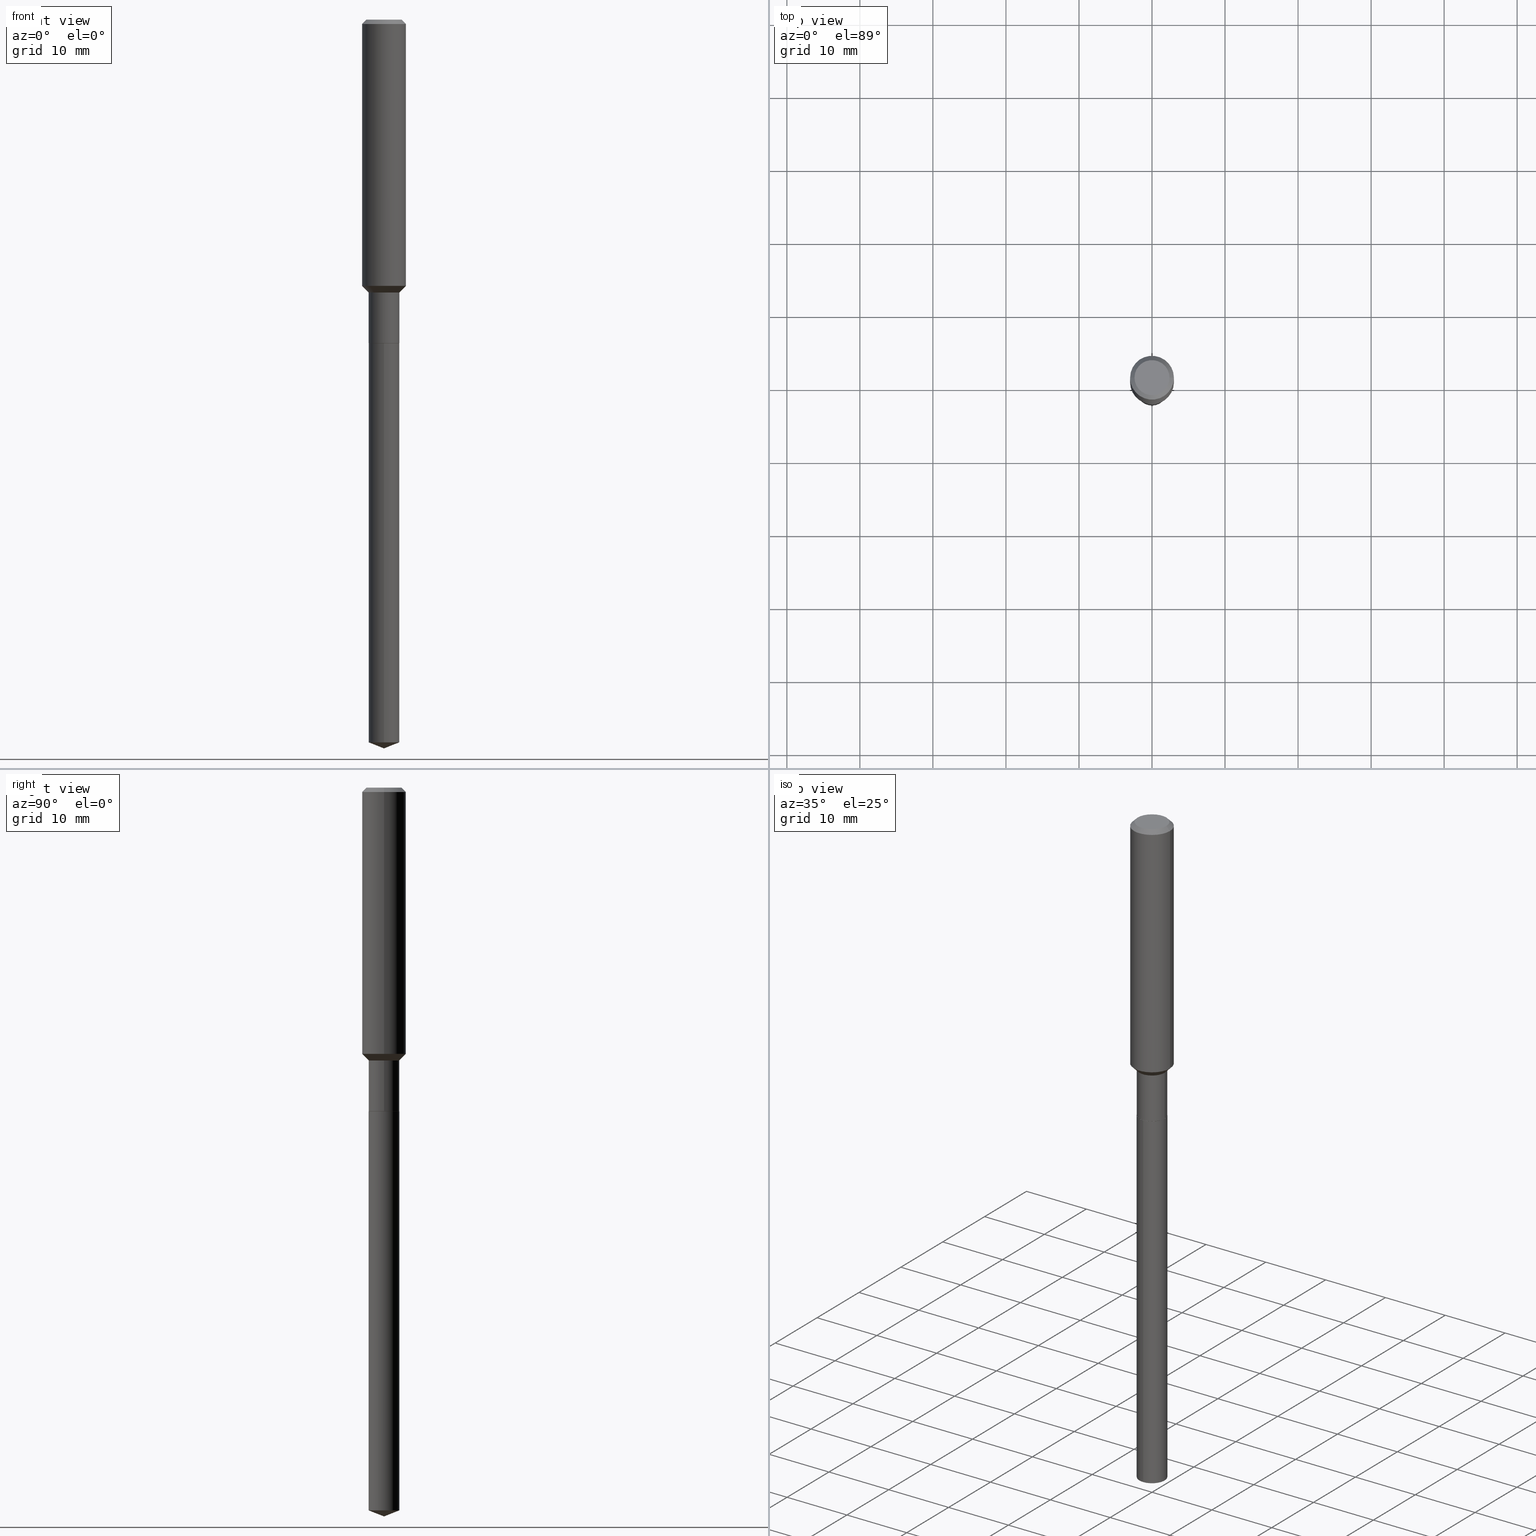
[diagram: canonical four-view strip — front | top / right | iso, engineering-drawing reading convention]
A machine part, canonical four-view strip (front | top / right | iso — engineering-drawing reading convention). The complete STEP part file that produces these views, byte-faithful:
ISO-10303-21;
HEADER;
FILE_DESCRIPTION (( 'STEP AP203' ),
    '1' );
FILE_NAME ('66721.STEP',
    '2024-04-25T04:30:56',
    ( '' ),
    ( '' ),
    'SwSTEP 2.0',
    'SolidWorks 2023',
    '' );
FILE_SCHEMA (( 'CONFIG_CONTROL_DESIGN' ));
ENDSEC;

DATA;
#1 = CIRCLE ( 'NONE', #403, 0.09447999999999998066 ) ;
#2 = LOCAL_TIME ( 0, 30, 56.00000000000000000, #224 ) ;
#3 = DIRECTION ( 'NONE',  ( -0.7071067811865483499, 7.493145998870357316E-15, 0.7071067811865466846 ) ) ;
#4 = CALENDAR_DATE ( 2024, 25, 4 ) ;
#5 = DIRECTION ( 'NONE',  ( -2.445430499061635460E-29, 3.491536196824304965E-15, 1.000000000000000000 ) ) ;
#6 = EDGE_CURVE ( 'NONE', #207, #221, #369, .T. ) ;
#7 = CARTESIAN_POINT ( 'NONE',  ( 4.264897597986878229E-29, -6.089143454942446628E-15, -1.743999999999999995 ) ) ;
#8 = DIRECTION ( 'NONE',  ( -2.445430499061635460E-29, 3.491536196824304965E-15, 1.000000000000000000 ) ) ;
#9 = CC_DESIGN_APPROVAL ( #430, ( #360 ) ) ;
#10 = CARTESIAN_POINT ( 'NONE',  ( 0.000000000000000000, 0.000000000000000000, 0.000000000000000000 ) ) ;
#11 = CARTESIAN_POINT ( 'NONE',  ( -0.08219999999999999529, -5.502428098973532713E-15, -1.743999999999999995 ) ) ;
#12 = CARTESIAN_POINT ( 'NONE',  ( 5.776197320209327532E-31, -8.246878922347559293E-17, -0.02362000000000014088 ) ) ;
#13 = ORIENTED_EDGE ( 'NONE', *, *, #106, .T. ) ;
#14 = CLOSED_SHELL ( 'NONE', ( #137, #485, #198, #43, #219 ) ) ;
#15 = AXIS2_PLACEMENT_3D ( 'NONE', #335, #481, #484 ) ;
#16 = DIRECTION ( 'NONE',  ( -2.445468806185136597E-29, 3.491481338843145583E-15, 1.000000000000000000 ) ) ;
#17 = ORIENTED_EDGE ( 'NONE', *, *, #307, .F. ) ;
#18 = MANIFOLD_SOLID_BREP ( 'Body-Move/Copy2[2]', #116 ) ;
#19 = CARTESIAN_POINT ( 'NONE',  ( -8.666862806320264475E-28, 1.237439049480793293E-13, 35.44107874015747939 ) ) ;
#20 = ADVANCED_FACE ( 'NONE', ( #142 ), #375, .T. ) ;
#21 = ORIENTED_EDGE ( 'NONE', *, *, #300, .T. ) ;
#22 = ORIENTED_EDGE ( 'NONE', *, *, #6, .T. ) ;
#23 = AXIS2_PLACEMENT_3D ( 'NONE', #346, #36, #349 ) ;
#24 = AXIS2_PLACEMENT_3D ( 'NONE', #393, #160, #427 ) ;
#25 = LINE ( 'NONE', #365, #81 ) ;
#26 = CARTESIAN_POINT ( 'NONE',  ( 0.1180999999999999966, -8.926936027602933910E-16, -0.02362000000000014088 ) ) ;
#27 = LINE ( 'NONE', #288, #95 ) ;
#28 = ORIENTED_EDGE ( 'NONE', *, *, #114, .F. ) ;
#29 = CC_DESIGN_DATE_AND_TIME_ASSIGNMENT ( #377, #75, ( #360 ) ) ;
#30 = FACE_OUTER_BOUND ( 'NONE', #480, .T. ) ;
#31 = CIRCLE ( 'NONE', #74, 0.08269999999999996798 ) ;
#32 = DATE_AND_TIME ( #39, #117 ) ;
#33 = CONICAL_SURFACE ( 'NONE', #317, 0.08269999999999996798, 0.7853981633974495002 ) ;
#34 = ORIENTED_EDGE ( 'NONE', *, *, #52, .F. ) ;
#35 = PERSON_AND_ORGANIZATION ( #454, #296 ) ;
#36 = DIRECTION ( 'NONE',  ( -2.445430499061635460E-29, 3.491536196824304965E-15, 1.000000000000000000 ) ) ;
#37 = PERSON_AND_ORGANIZATION ( #454, #296 ) ;
#38 = CYLINDRICAL_SURFACE ( 'NONE', #381, 0.08269999999999998186 ) ;
#39 = CALENDAR_DATE ( 2024, 25, 4 ) ;
#40 = AXIS2_PLACEMENT_3D ( 'NONE', #353, #16, #462 ) ;
#41 = CONICAL_SURFACE ( 'NONE', #414, 99.94676754584023115, 1.195550537616120401 ) ;
#42 = CARTESIAN_POINT ( 'NONE',  ( 5.876188424736979798E-16, 0.08269999999998636775, -3.896423603666645530 ) ) ;
#43 = ADVANCED_FACE ( 'NONE', ( #409 ), #97, .T. ) ;
#44 = PERSON_AND_ORGANIZATION ( #454, #296 ) ;
#45 = FACE_OUTER_BOUND ( 'NONE', #334, .T. ) ;
#46 = CARTESIAN_POINT ( 'NONE',  ( 4.264897597986878229E-29, -6.089143454942446628E-15, -1.743999999999999995 ) ) ;
#47 = CARTESIAN_POINT ( 'NONE',  ( -0.1180999999999999966, -1.708617876834551977E-15, -0.02362000000000014088 ) ) ;
#48 = CIRCLE ( 'NONE', #23, 0.08269999999999999574 ) ;
#49 = CC_DESIGN_APPROVAL ( #347, ( #174 ) ) ;
#50 = VERTEX_POINT ( 'NONE', #295 ) ;
#51 = CARTESIAN_POINT ( 'NONE',  ( 4.264897597986878229E-29, -6.089143454942446628E-15, -1.743999999999999995 ) ) ;
#52 = EDGE_CURVE ( 'NONE', #103, #366, #191, .T. ) ;
#53 = ORIENTED_EDGE ( 'NONE', *, *, #459, .F. ) ;
#54 = DIRECTION ( 'NONE',  ( -2.445430499061635460E-29, 3.491536196824304965E-15, 1.000000000000000000 ) ) ;
#55 = EDGE_LOOP ( 'NONE', ( #434, #100, #395 ) ) ;
#56 = ADVANCED_FACE ( 'NONE', ( #30 ), #396, .T. ) ;
#57 = DIRECTION ( 'NONE',  ( -2.445468806185136597E-29, 3.491481338843145583E-15, 1.000000000000000000 ) ) ;
#58 = ORIENTED_EDGE ( 'NONE', *, *, #348, .F. ) ;
#59 = EDGE_CURVE ( 'NONE', #299, #133, #109, .T. ) ;
#60 = DIRECTION ( 'NONE',  ( -2.445468806185136877E-29, 3.491481338843145188E-15, 1.000000000000000000 ) ) ;
#61 = ORIENTED_EDGE ( 'NONE', *, *, #364, .F. ) ;
#62 =( LENGTH_UNIT ( ) NAMED_UNIT ( * ) SI_UNIT ( $, .METRE. ) );
#63 = ORIENTED_EDGE ( 'NONE', *, *, #205, .T. ) ;
#64 = DIRECTION ( 'NONE',  ( -2.445430499061635460E-29, 3.491536196824304965E-15, 1.000000000000000000 ) ) ;
#65 = ORIENTED_EDGE ( 'NONE', *, *, #388, .F. ) ;
#66 = VECTOR ( 'NONE', #385, 39.37007874015748143 ) ;
#67 = DIRECTION ( 'NONE',  ( -2.445468806185136597E-29, 3.491481338843145583E-15, 1.000000000000000000 ) ) ;
#68 = DIRECTION ( 'NONE',  ( 2.445468806185136597E-29, -3.491481338843145583E-15, -1.000000000000000000 ) ) ;
#69 = DIRECTION ( 'NONE',  ( -2.445468806185136877E-29, 3.491481338843145188E-15, 1.000000000000000000 ) ) ;
#70 = ORIENTED_EDGE ( 'NONE', *, *, #348, .T. ) ;
#71 = APPROVAL_ROLE ( '' ) ;
#72 = ORIENTED_EDGE ( 'NONE', *, *, #145, .F. ) ;
#73 = EDGE_CURVE ( 'NONE', #287, #133, #225, .T. ) ;
#74 = AXIS2_PLACEMENT_3D ( 'NONE', #278, #387, #425 ) ;
#75 = DATE_TIME_ROLE ( 'classification_date' ) ;
#76 = APPROVAL_PERSON_ORGANIZATION ( #35, #430, #71 ) ;
#77 = DIRECTION ( 'NONE',  ( -2.445468806185136597E-29, 3.491481338843145583E-15, 1.000000000000000000 ) ) ;
#78 = PERSON_AND_ORGANIZATION_ROLE ( 'creator' ) ;
#79 = CARTESIAN_POINT ( 'NONE',  ( -0.08269999999999996798, -4.549048503232433592E-15, -1.471199999999999841 ) ) ;
#80 = CARTESIAN_POINT ( 'NONE',  ( -0.08269999999999998186, 5.876188424736027248E-16, -4.067959319640806203E-30 ) ) ;
#81 = VECTOR ( 'NONE', #64, 39.37007874015748143 ) ;
#82 = CARTESIAN_POINT ( 'NONE',  ( 9.528499925293445229E-29, -1.360440837804354766E-14, -3.896423603666644642 ) ) ;
#83 = PLANE ( 'NONE',  #344 ) ;
#84 = CARTESIAN_POINT ( 'NONE',  ( 5.876188424736982756E-16, 0.08269999999999390339, -1.744000000000000217 ) ) ;
#85 = EDGE_LOOP ( 'NONE', ( #21, #444, #122, #326 ) ) ;
#86 = EDGE_CURVE ( 'NONE', #50, #207, #94, .T. ) ;
#87 = DIRECTION ( 'NONE',  ( 2.445468806185136597E-29, -3.491481338843145583E-15, -1.000000000000000000 ) ) ;
#88 = AXIS2_PLACEMENT_3D ( 'NONE', #406, #217, #372 ) ;
#89 = EDGE_LOOP ( 'NONE', ( #478, #196, #199, #34 ) ) ;
#90 = CARTESIAN_POINT ( 'NONE',  ( -0.08269999999999996798, -5.024413687515927552E-15, -1.471199999999999841 ) ) ;
#91 = DIRECTION ( 'NONE',  ( -2.445468806185136597E-29, 3.491481338843145583E-15, 1.000000000000000000 ) ) ;
#92 = ORIENTED_EDGE ( 'NONE', *, *, #273, .T. ) ;
#93 = CARTESIAN_POINT ( 'NONE',  ( 0.08269999999999999574, -6.664888727717679804E-15, -1.743500000000000050 ) ) ;
#94 = CIRCLE ( 'NONE', #179, 0.09447999999999998066 ) ;
#95 = VECTOR ( 'NONE', #210, 39.37007874015748854 ) ;
#96 = DIRECTION ( 'NONE',  ( -6.982962677686265922E-15, -1.000000000000000000, 3.498627837349995151E-15 ) ) ;
#97 = CYLINDRICAL_SURFACE ( 'NONE', #338, 0.08269999999999999574 ) ;
#98 = DIRECTION ( 'NONE',  ( 2.438088387897960049E-29, -3.491481338843145188E-15, -1.000000000000000000 ) ) ;
#99 = ORIENTED_EDGE ( 'NONE', *, *, #459, .T. ) ;
#100 = ORIENTED_EDGE ( 'NONE', *, *, #73, .T. ) ;
#101 = AXIS2_PLACEMENT_3D ( 'NONE', #193, #119, #272 ) ;
#102 = CIRCLE ( 'NONE', #184, 0.08269999999999999574 ) ;
#103 = VERTEX_POINT ( 'NONE', #413 ) ;
#104 = MECHANICAL_CONTEXT ( 'NONE', #129, 'mechanical' ) ;
#105 = ORIENTED_EDGE ( 'NONE', *, *, #86, .T. ) ;
#106 = EDGE_CURVE ( 'NONE', #207, #50, #1, .T. ) ;
#107 = PERSON_AND_ORGANIZATION_ROLE ( 'classification_officer' ) ;
#108 = CARTESIAN_POINT ( 'NONE',  ( -0.1181000000000000799, 8.391509709326788873E-16, -5.809262341591047988E-30 ) ) ;
#109 = CIRCLE ( 'NONE', #222, 0.08269999999999999574 ) ;
#110 = CC_DESIGN_SECURITY_CLASSIFICATION ( #360, ( #237 ) ) ;
#111 = APPROVAL_DATE_TIME ( #410, #347 ) ;
#112 = CARTESIAN_POINT ( 'NONE',  ( 3.511204111920619005E-29, -5.013068906310987652E-15, -1.435799999999999743 ) ) ;
#113 = CARTESIAN_POINT ( 'NONE',  ( -5.774910134446114897E-16, -0.08270000000000608809, -1.743999999999999773 ) ) ;
#114 = EDGE_CURVE ( 'NONE', #247, #320, #260, .T. ) ;
#115 = LINE ( 'NONE', #156, #66 ) ;
#116 = CLOSED_SHELL ( 'NONE', ( #208, #20, #283, #312, #304, #215, #56, #294, #328, #401, #476, #386 ) ) ;
#117 = LOCAL_TIME ( 0, 30, 56.00000000000000000, #148 ) ;
#118 = DIRECTION ( 'NONE',  ( 1.000000000000000000, -6.982962677686267499E-15, 4.876176775795936353E-29 ) ) ;
#119 = DIRECTION ( 'NONE',  ( -2.445468806185136597E-29, 3.491481338843145583E-15, 1.000000000000000000 ) ) ;
#120 = ORIENTED_EDGE ( 'NONE', *, *, #457, .T. ) ;
#121 = FACE_OUTER_BOUND ( 'NONE', #282, .T. ) ;
#122 = ORIENTED_EDGE ( 'NONE', *, *, #218, .F. ) ;
#123 = CARTESIAN_POINT ( 'NONE',  ( 0.08269999999999996798, -5.714158359150689518E-15, -1.471199999999999841 ) ) ;
#124 = CIRCLE ( 'NONE', #411, 0.08269999999999999574 ) ;
#125 = CC_DESIGN_APPROVAL ( #159, ( #237 ) ) ;
#126 = EDGE_LOOP ( 'NONE', ( #399, #472, #99, #58 ) ) ;
#127 = CARTESIAN_POINT ( 'NONE',  ( 0.000000000000000000, 0.000000000000000000, 0.000000000000000000 ) ) ;
#128 = EDGE_CURVE ( 'NONE', #366, #103, #124, .T. ) ;
#129 = APPLICATION_CONTEXT ( 'configuration controlled 3d designs of mechanical parts and assemblies' ) ;
#130 = LINE ( 'NONE', #281, #448 ) ;
#131 = ORIENTED_EDGE ( 'NONE', *, *, #86, .F. ) ;
#132 = FACE_OUTER_BOUND ( 'NONE', #251, .T. ) ;
#133 = VERTEX_POINT ( 'NONE', #42 ) ;
#134 = CIRCLE ( 'NONE', #467, 0.08269999999999999574 ) ;
#135 = PLANE ( 'NONE',  #230 ) ;
#136 = EDGE_LOOP ( 'NONE', ( #239, #70 ) ) ;
#137 = ADVANCED_FACE ( 'NONE', ( #45 ), #302, .T. ) ;
#138 = DIRECTION ( 'NONE',  ( -0.7071067811866199593, 7.493145998870616062E-15, 0.7071067811864750752 ) ) ;
#139 = DIRECTION ( 'NONE',  ( 0.7071067811865459074, -7.319954787623249734E-15, -0.7071067811865491270 ) ) ;
#140 = DIRECTION ( 'NONE',  ( 1.000000000000000000, -6.982962677686266711E-15, 0.000000000000000000 ) ) ;
#141 = EDGE_CURVE ( 'NONE', #167, #243, #446, .T. ) ;
#142 = FACE_OUTER_BOUND ( 'NONE', #180, .T. ) ;
#143 = CIRCLE ( 'NONE', #101, 0.1180999999999999966 ) ;
#144 = APPLICATION_PROTOCOL_DEFINITION ( 'international standard', 'config_control_design', 1994, #129 ) ;
#145 = EDGE_CURVE ( 'NONE', #133, #299, #48, .T. ) ;
#146 = VERTEX_POINT ( 'NONE', #113 ) ;
#147 = CC_DESIGN_PERSON_AND_ORGANIZATION_ASSIGNMENT ( #301, #262, ( #237 ) ) ;
#148 = COORDINATED_UNIVERSAL_TIME_OFFSET ( 5, 0, .BEHIND. ) ;
#149 = DIRECTION ( 'NONE',  ( 1.000000000000000000, -6.982962677686273021E-15, 0.000000000000000000 ) ) ;
#150 = DIRECTION ( 'NONE',  ( -2.445468806185136877E-29, 3.491481338843145188E-15, 1.000000000000000000 ) ) ;
#151 = VECTOR ( 'NONE', #150, 39.37007874015748143 ) ;
#152 = DATE_AND_TIME ( #4, #442 ) ;
#153 = CARTESIAN_POINT ( 'NONE',  ( 4.264897597986878229E-29, -6.089143454942446628E-15, -1.743999999999999995 ) ) ;
#154 = DIRECTION ( 'NONE',  ( -2.445468806185136597E-29, 3.491481338843145583E-15, 1.000000000000000000 ) ) ;
#155 = PERSON_AND_ORGANIZATION ( #454, #296 ) ;
#156 = CARTESIAN_POINT ( 'NONE',  ( 5.876188424736454219E-16, 0.08269999999999390339, -1.744000000000000217 ) ) ;
#157 = VECTOR ( 'NONE', #417, 39.37007874015748143 ) ;
#158 = DIRECTION ( 'NONE',  ( -2.445468806185136597E-29, 3.491481338843145583E-15, 1.000000000000000000 ) ) ;
#159 = APPROVAL ( #408, 'UNSPECIFIED' ) ;
#160 = DIRECTION ( 'NONE',  ( -2.445468806185136597E-29, 3.491481338843145583E-15, 1.000000000000000000 ) ) ;
#161 = CARTESIAN_POINT ( 'NONE',  ( 9.608096430813166932E-29, -1.371824571732269522E-14, -3.929000000000000270 ) ) ;
#162 = ORIENTED_EDGE ( 'NONE', *, *, #428, .T. ) ;
#163 = CARTESIAN_POINT ( 'NONE',  ( 0.1180999999999999966, -9.071566814582237199E-16, -0.02362000000000014088 ) ) ;
#164 = AXIS2_PLACEMENT_3D ( 'NONE', #404, #173, #140 ) ;
#165 = ORIENTED_EDGE ( 'NONE', *, *, #373, .T. ) ;
#166 = CARTESIAN_POINT ( 'NONE',  ( 3.597773707659572310E-29, -5.136667345706035627E-15, -1.471199999999999841 ) ) ;
#167 = VERTEX_POINT ( 'NONE', #227 ) ;
#168 = FACE_OUTER_BOUND ( 'NONE', #89, .T. ) ;
#169 = ORIENTED_EDGE ( 'NONE', *, *, #407, .F. ) ;
#170 = DIRECTION ( 'NONE',  ( -2.445430499061635460E-29, 3.491536196824304965E-15, 1.000000000000000000 ) ) ;
#171 = ORIENTED_EDGE ( 'NONE', *, *, #451, .T. ) ;
#172 = CONICAL_SURFACE ( 'NONE', #164, 0.08219999999999999529, 0.7853981633975507526 ) ;
#173 = DIRECTION ( 'NONE',  ( -2.445468806185136597E-29, 3.491481338843145583E-15, 1.000000000000000000 ) ) ;
#174 = PRODUCT_DEFINITION ( 'UNKNOWN', '', #237, #240 ) ;
#175 = ORIENTED_EDGE ( 'NONE', *, *, #73, .F. ) ;
#176 = EDGE_LOOP ( 'NONE', ( #175, #162, #72 ) ) ;
#177 = MANIFOLD_SOLID_BREP ( 'Body-Move/Copy2[1]', #14 ) ;
#178 = CARTESIAN_POINT ( 'NONE',  ( 3.597773707659572310E-29, -5.136667345706035627E-15, -1.471199999999999841 ) ) ;
#179 = AXIS2_PLACEMENT_3D ( 'NONE', #380, #419, #232 ) ;
#180 = EDGE_LOOP ( 'NONE', ( #402, #22, #92, #61 ) ) ;
#181 = COORDINATED_UNIVERSAL_TIME_OFFSET ( 5, 0, .BEHIND. ) ;
#182 = CARTESIAN_POINT ( 'NONE',  ( -8.666862806320264475E-28, 1.237439049480793293E-13, 35.44107874015747939 ) ) ;
#183 = CARTESIAN_POINT ( 'NONE',  ( 4.263674863583785988E-29, -6.087397714273025125E-15, -1.743500000000000050 ) ) ;
#184 = AXIS2_PLACEMENT_3D ( 'NONE', #397, #54, #463 ) ;
#185 = PERSON_AND_ORGANIZATION ( #454, #296 ) ;
#186 = CARTESIAN_POINT ( 'NONE',  ( 4.264897597986878229E-29, -6.089143454942446628E-15, -1.743999999999999995 ) ) ;
#187 = DIRECTION ( 'NONE',  ( -6.982962677686265922E-15, -1.000000000000000000, 3.303322846026920670E-15 ) ) ;
#188 = EDGE_CURVE ( 'NONE', #249, #167, #313, .T. ) ;
#189 = DIRECTION ( 'NONE',  ( -2.445468806185136597E-29, 3.491481338843145583E-15, 1.000000000000000000 ) ) ;
#190 = CONICAL_SURFACE ( 'NONE', #276, 99.94676754584023115, 1.195550537616120401 ) ;
#191 = CIRCLE ( 'NONE', #88, 0.08269999999999999574 ) ;
#192 = APPROVAL_PERSON_ORGANIZATION ( #185, #347, #383 ) ;
#193 = CARTESIAN_POINT ( 'NONE',  ( 5.776197320209327532E-31, -8.246878922347559293E-17, -0.02362000000000014088 ) ) ;
#194 = ORIENTED_EDGE ( 'NONE', *, *, #407, .T. ) ;
#195 = LINE ( 'NONE', #123, #323 ) ;
#196 = ORIENTED_EDGE ( 'NONE', *, *, #114, .T. ) ;
#197 = DIRECTION ( 'NONE',  ( 6.982962677686265922E-15, 1.000000000000000000, -3.491536196824304965E-15 ) ) ;
#198 = ADVANCED_FACE ( 'NONE', ( #310 ), #190, .T. ) ;
#199 = ORIENTED_EDGE ( 'NONE', *, *, #303, .T. ) ;
#200 = EDGE_CURVE ( 'NONE', #103, #249, #488, .T. ) ;
#201 = CC_DESIGN_PERSON_AND_ORGANIZATION_ASSIGNMENT ( #37, #107, ( #360 ) ) ;
#202 = DIRECTION ( 'NONE',  ( 1.000000000000000000, -6.982962677686266711E-15, 4.876176775795936353E-29 ) ) ;
#203 = VECTOR ( 'NONE', #138, 39.37007874015748143 ) ;
#204 = ORIENTED_EDGE ( 'NONE', *, *, #373, .F. ) ;
#205 = EDGE_CURVE ( 'NONE', #133, #292, #115, .T. ) ;
#206 = CARTESIAN_POINT ( 'NONE',  ( 0.1181000000000001632, -5.837756798545737492E-15, -1.435799999999999743 ) ) ;
#207 = VERTEX_POINT ( 'NONE', #379 ) ;
#208 = ADVANCED_FACE ( 'NONE', ( #228 ), #475, .T. ) ;
#209 = EDGE_LOOP ( 'NONE', ( #332, #436, #363, #376 ) ) ;
#210 = DIRECTION ( 'NONE',  ( -6.497071151882122203E-15, -0.9304175679820249067, 0.3665012267242962474 ) ) ;
#211 = ORIENTED_EDGE ( 'NONE', *, *, #59, .T. ) ;
#212 = CIRCLE ( 'NONE', #420, 0.08219999999999999529 ) ;
#213 = FACE_OUTER_BOUND ( 'NONE', #55, .T. ) ;
#214 = DIRECTION ( 'NONE',  ( -1.000000000000000000, 6.982962677686266711E-15, 0.000000000000000000 ) ) ;
#215 = ADVANCED_FACE ( 'NONE', ( #306 ), #38, .T. ) ;
#216 = PLANE ( 'NONE',  #382 ) ;
#217 = DIRECTION ( 'NONE',  ( -2.445468806185136597E-29, 3.491481338843145583E-15, 1.000000000000000000 ) ) ;
#218 = EDGE_CURVE ( 'NONE', #405, #167, #412, .T. ) ;
#219 = ADVANCED_FACE ( 'NONE', ( #421 ), #83, .F. ) ;
#220 = PERSON_AND_ORGANIZATION ( #454, #296 ) ;
#221 = VERTEX_POINT ( 'NONE', #163 ) ;
#222 = AXIS2_PLACEMENT_3D ( 'NONE', #82, #259, #341 ) ;
#223 = LOCAL_TIME ( 0, 30, 56.00000000000000000, #181 ) ;
#224 = COORDINATED_UNIVERSAL_TIME_OFFSET ( 5, 0, .BEHIND. ) ;
#225 = LINE ( 'NONE', #263, #440 ) ;
#226 = APPROVAL_DATE_TIME ( #267, #430 ) ;
#227 = CARTESIAN_POINT ( 'NONE',  ( -0.1181000000000001632, -4.173917935378308666E-15, -1.435799999999999743 ) ) ;
#228 = FACE_OUTER_BOUND ( 'NONE', #329, .T. ) ;
#229 = AXIS2_PLACEMENT_3D ( 'NONE', #255, #68, #214 ) ;
#230 = AXIS2_PLACEMENT_3D ( 'NONE', #368, #98, #256 ) ;
#231 = APPLICATION_PROTOCOL_DEFINITION ( 'international standard', 'config_control_design', 1994, #465 ) ;
#232 = DIRECTION ( 'NONE',  ( 1.000000000000000000, -6.982962677686267499E-15, 4.875432709231658792E-29 ) ) ;
#233 = DIRECTION ( 'NONE',  ( 6.611014441532069744E-15, 0.9304175679820275713, 0.3665012267242896971 ) ) ;
#234 = CARTESIAN_POINT ( 'NONE',  ( -5.774910134445587346E-16, -0.08270000000001359597, -3.896423603666644198 ) ) ;
#235 = ORIENTED_EDGE ( 'NONE', *, *, #128, .T. ) ;
#236 = AXIS2_PLACEMENT_3D ( 'NONE', #186, #378, #187 ) ;
#237 = PRODUCT_DEFINITION_FORMATION_WITH_SPECIFIED_SOURCE ( 'ANY', '', #471, .NOT_KNOWN. ) ;
#238 = CARTESIAN_POINT ( 'NONE',  ( 0.08219999999999999529, -6.663142987048257512E-15, -1.743999999999999995 ) ) ;
#239 = ORIENTED_EDGE ( 'NONE', *, *, #314, .T. ) ;
#240 = DESIGN_CONTEXT ( 'detailed design', #465, 'design' ) ;
#241 = DIRECTION ( 'NONE',  ( 1.000000000000000000, -6.982962677686263555E-15, 0.000000000000000000 ) ) ;
#242 = CYLINDRICAL_SURFACE ( 'NONE', #483, 0.1181000000000000799 ) ;
#243 = VERTEX_POINT ( 'NONE', #47 ) ;
#244 = CARTESIAN_POINT ( 'NONE',  ( 4.264897597986878229E-29, -6.089143454942446628E-15, -1.743999999999999995 ) ) ;
#245 = VECTOR ( 'NONE', #3, 39.37007874015748143 ) ;
#246 = AXIS2_PLACEMENT_3D ( 'NONE', #12, #87, #327 ) ;
#247 = VERTEX_POINT ( 'NONE', #11 ) ;
#248 = CARTESIAN_POINT ( 'NONE',  ( 0.08269999999999996798, -5.714158359150689518E-15, -1.471199999999999841 ) ) ;
#249 = VERTEX_POINT ( 'NONE', #90 ) ;
#250 =( NAMED_UNIT ( * ) SI_UNIT ( $, .STERADIAN. ) SOLID_ANGLE_UNIT ( ) );
#251 = EDGE_LOOP ( 'NONE', ( #105, #13 ) ) ;
#252 = AXIS2_PLACEMENT_3D ( 'NONE', #7, #154, #315 ) ;
#253 = ORIENTED_EDGE ( 'NONE', *, *, #314, .F. ) ;
#254 = AXIS2_PLACEMENT_3D ( 'NONE', #330, #67, #473 ) ;
#255 = CARTESIAN_POINT ( 'NONE',  ( 5.776197320209327532E-31, -8.246878922347559293E-17, -0.02362000000000014088 ) ) ;
#256 = DIRECTION ( 'NONE',  ( -1.000000000000000000, 6.982962677686265922E-15, -4.876176775795935793E-29 ) ) ;
#257 = ORIENTED_EDGE ( 'NONE', *, *, #200, .F. ) ;
#258 = PERSON_AND_ORGANIZATION_ROLE ( 'design_owner' ) ;
#259 = DIRECTION ( 'NONE',  ( -2.445430499061635460E-29, 3.491536196824304965E-15, 1.000000000000000000 ) ) ;
#260 = CIRCLE ( 'NONE', #460, 0.08219999999999999529 ) ;
#261 = LOCAL_TIME ( 0, 30, 56.00000000000000000, #487 ) ;
#262 = PERSON_AND_ORGANIZATION_ROLE ( 'creator' ) ;
#263 = CARTESIAN_POINT ( 'NONE',  ( 9.608231217707932809E-29, -1.371805437268441056E-14, -3.929000000000000270 ) ) ;
#264 = EDGE_CURVE ( 'NONE', #167, #405, #466, .T. ) ;
#265 = SECURITY_CLASSIFICATION_LEVEL ( 'unclassified' ) ;
#266 = DIRECTION ( 'NONE',  ( -6.982962677686265922E-15, -1.000000000000000000, 3.498627837349995151E-15 ) ) ;
#267 = DATE_AND_TIME ( #340, #223 ) ;
#268 = CARTESIAN_POINT ( 'NONE',  ( 0.000000000000000000, 0.000000000000000000, 0.000000000000000000 ) ) ;
#269 = VECTOR ( 'NONE', #69, 39.37007874015748143 ) ;
#270 = DIRECTION ( 'NONE',  ( 1.000000000000000000, -6.982962677686270655E-15, 0.000000000000000000 ) ) ;
#271 = EDGE_CURVE ( 'NONE', #486, #405, #195, .T. ) ;
#272 = DIRECTION ( 'NONE',  ( 1.000000000000000000, -6.982962677686266711E-15, 0.000000000000000000 ) ) ;
#273 = EDGE_CURVE ( 'NONE', #221, #243, #143, .T. ) ;
#274 = FACE_OUTER_BOUND ( 'NONE', #339, .T. ) ;
#275 = ORIENTED_EDGE ( 'NONE', *, *, #200, .T. ) ;
#276 = AXIS2_PLACEMENT_3D ( 'NONE', #182, #5, #266 ) ;
#277 = AXIS2_PLACEMENT_3D ( 'NONE', #10, #57, #391 ) ;
#278 = CARTESIAN_POINT ( 'NONE',  ( 3.597773707659572310E-29, -5.136667345706035627E-15, -1.471199999999999841 ) ) ;
#279 = ORIENTED_EDGE ( 'NONE', *, *, #300, .F. ) ;
#280 = DIRECTION ( 'NONE',  ( -2.445468806185136597E-29, 3.491481338843145583E-15, 1.000000000000000000 ) ) ;
#281 = CARTESIAN_POINT ( 'NONE',  ( -0.1180999999999999966, 7.422191030112725094E-16, -0.02362000000000014088 ) ) ;
#282 = EDGE_LOOP ( 'NONE', ( #358, #439, #171, #17 ) ) ;
#283 = ADVANCED_FACE ( 'NONE', ( #464 ), #242, .T. ) ;
#284 = LINE ( 'NONE', #441, #269 ) ;
#285 = AXIS2_PLACEMENT_3D ( 'NONE', #112, #449, #270 ) ;
#286 = CONICAL_SURFACE ( 'NONE', #246, 0.1180999999999999966, 0.7853981633974460586 ) ;
#287 = VERTEX_POINT ( 'NONE', #161 ) ;
#288 = CARTESIAN_POINT ( 'NONE',  ( 9.608096430813166932E-29, -1.371824571732269522E-14, -3.929000000000000270 ) ) ;
#289 = ORIENTED_EDGE ( 'NONE', *, *, #6, .F. ) ;
#290 = ADVANCED_BREP_SHAPE_REPRESENTATION ( '66721', ( #177, #18, #15 ), #324 ) ;
#291 = LENGTH_MEASURE_WITH_UNIT ( LENGTH_MEASURE( 0.02539999999999999897 ), #62 );
#292 = VERTEX_POINT ( 'NONE', #84 ) ;
#293 = LINE ( 'NONE', #333, #390 ) ;
#294 = ADVANCED_FACE ( 'NONE', ( #121 ), #422, .T. ) ;
#295 = CARTESIAN_POINT ( 'NONE',  ( -0.09447999999999998066, 7.009847083995354710E-16, -1.928573779297727792E-17 ) ) ;
#296 = ORGANIZATION ( 'UNSPECIFIED', 'UNSPECIFIED', '' ) ;
#297 = CC_DESIGN_PERSON_AND_ORGANIZATION_ASSIGNMENT ( #445, #447, ( #237 ) ) ;
#298 =( CONVERSION_BASED_UNIT ( 'INCH', #291 ) LENGTH_UNIT ( ) NAMED_UNIT ( #437 ) );
#299 = VERTEX_POINT ( 'NONE', #234 ) ;
#300 = EDGE_CURVE ( 'NONE', #486, #249, #31, .T. ) ;
#301 = PERSON_AND_ORGANIZATION ( #454, #296 ) ;
#302 = CYLINDRICAL_SURFACE ( 'NONE', #236, 0.08269999999999999574 ) ;
#303 = EDGE_CURVE ( 'NONE', #320, #366, #468, .T. ) ;
#304 = ADVANCED_FACE ( 'NONE', ( #274 ), #394, .T. ) ;
#305 = CALENDAR_DATE ( 2024, 25, 4 ) ;
#306 = FACE_OUTER_BOUND ( 'NONE', #429, .T. ) ;
#307 = EDGE_CURVE ( 'NONE', #243, #221, #331, .T. ) ;
#308 = VECTOR ( 'NONE', #139, 39.37007874015748143 ) ;
#309 = APPROVAL_STATUS ( 'not_yet_approved' ) ;
#310 = FACE_OUTER_BOUND ( 'NONE', #176, .T. ) ;
#311 = APPROVAL_DATE_TIME ( #152, #159 ) ;
#312 = ADVANCED_FACE ( 'NONE', ( #319 ), #33, .T. ) ;
#313 = LINE ( 'NONE', #79, #245 ) ;
#314 = EDGE_CURVE ( 'NONE', #146, #292, #102, .T. ) ;
#315 = DIRECTION ( 'NONE',  ( 1.000000000000000000, -6.982962677686266711E-15, 0.000000000000000000 ) ) ;
#316 = AXIS2_PLACEMENT_3D ( 'NONE', #325, #158, #361 ) ;
#317 = AXIS2_PLACEMENT_3D ( 'NONE', #166, #280, #241 ) ;
#318 = DIRECTION ( 'NONE',  ( 0.7071067811866199593, -2.468850131083015945E-15, 0.7071067811864750752 ) ) ;
#319 = FACE_OUTER_BOUND ( 'NONE', #85, .T. ) ;
#320 = VERTEX_POINT ( 'NONE', #423 ) ;
#321 = DIRECTION ( 'NONE',  ( 0.7071067811865483499, -2.468850131082265738E-15, 0.7071067811865466846 ) ) ;
#322 = ORIENTED_EDGE ( 'NONE', *, *, #303, .F. ) ;
#323 = VECTOR ( 'NONE', #321, 39.37007874015748143 ) ;
#324 =( GEOMETRIC_REPRESENTATION_CONTEXT ( 3 ) GLOBAL_UNCERTAINTY_ASSIGNED_CONTEXT ( ( #337 ) ) GLOBAL_UNIT_ASSIGNED_CONTEXT ( ( #298, #438, #250 ) ) REPRESENTATION_CONTEXT ( 'NONE', 'WORKASPACE' ) );
#325 = CARTESIAN_POINT ( 'NONE',  ( 0.000000000000000000, 0.000000000000000000, 0.000000000000000000 ) ) ;
#326 = ORIENTED_EDGE ( 'NONE', *, *, #271, .F. ) ;
#327 = DIRECTION ( 'NONE',  ( -1.000000000000000000, 6.982962677686266711E-15, 0.000000000000000000 ) ) ;
#328 = ADVANCED_FACE ( 'NONE', ( #357 ), #286, .T. ) ;
#329 = EDGE_LOOP ( 'NONE', ( #165, #120, #469, #322 ) ) ;
#330 = CARTESIAN_POINT ( 'NONE',  ( 3.597773707659572310E-29, -5.136667345706035627E-15, -1.471199999999999841 ) ) ;
#331 = CIRCLE ( 'NONE', #24, 0.1180999999999999966 ) ;
#332 = ORIENTED_EDGE ( 'NONE', *, *, #218, .T. ) ;
#333 = CARTESIAN_POINT ( 'NONE',  ( 0.08269999999999998186, -5.774910134446541868E-16, 4.032598193583238570E-30 ) ) ;
#334 = EDGE_LOOP ( 'NONE', ( #211, #63, #253, #53 ) ) ;
#335 = CARTESIAN_POINT ( 'NONE',  ( 0.000000000000000000, 0.000000000000000000, 0.000000000000000000 ) ) ;
#336 = DIRECTION ( 'NONE',  ( -2.445430499061635460E-29, 3.491536196824304965E-15, 1.000000000000000000 ) ) ;
#337 = UNCERTAINTY_MEASURE_WITH_UNIT (LENGTH_MEASURE( 1.000000000000000082E-05 ), #298, 'distance_accuracy_value', 'NONE');
#338 = AXIS2_PLACEMENT_3D ( 'NONE', #370, #336, #482 ) ;
#339 = EDGE_LOOP ( 'NONE', ( #235, #275, #279, #65 ) ) ;
#340 = CALENDAR_DATE ( 2024, 25, 4 ) ;
#341 = DIRECTION ( 'NONE',  ( -6.982962677686265922E-15, -1.000000000000000000, 6.606645692053841341E-15 ) ) ;
#342 = DIRECTION ( 'NONE',  ( -2.445468806185136597E-29, 3.491481338843145583E-15, 1.000000000000000000 ) ) ;
#343 = DIRECTION ( 'NONE',  ( 1.000000000000000000, -6.982962677686266711E-15, 0.000000000000000000 ) ) ;
#344 = AXIS2_PLACEMENT_3D ( 'NONE', #46, #355, #197 ) ;
#345 = CIRCLE ( 'NONE', #254, 0.08269999999999996798 ) ;
#346 = CARTESIAN_POINT ( 'NONE',  ( 9.528499925293445229E-29, -1.360440837804354766E-14, -3.896423603666644642 ) ) ;
#347 = APPROVAL ( #309, 'UNSPECIFIED' ) ;
#348 = EDGE_CURVE ( 'NONE', #292, #146, #134, .T. ) ;
#349 = DIRECTION ( 'NONE',  ( -6.982962677686265922E-15, -1.000000000000000000, 6.606645692053841341E-15 ) ) ;
#350 = PRODUCT_RELATED_PRODUCT_CATEGORY ( 'detail', '', ( #471 ) ) ;
#351 = DIRECTION ( 'NONE',  ( 1.000000000000000000, -6.982962677686266711E-15, 0.000000000000000000 ) ) ;
#352 = VECTOR ( 'NONE', #318, 39.37007874015748143 ) ;
#353 = CARTESIAN_POINT ( 'NONE',  ( 3.511204111920619005E-29, -5.013068906310987652E-15, -1.435799999999999743 ) ) ;
#354 = EDGE_LOOP ( 'NONE', ( #289, #131, #474, #367 ) ) ;
#355 = DIRECTION ( 'NONE',  ( 2.445430499061635460E-29, -3.491536196824304965E-15, -1.000000000000000000 ) ) ;
#356 = ORIENTED_EDGE ( 'NONE', *, *, #52, .T. ) ;
#357 = FACE_OUTER_BOUND ( 'NONE', #354, .T. ) ;
#358 = ORIENTED_EDGE ( 'NONE', *, *, #141, .F. ) ;
#359 = AXIS2_PLACEMENT_3D ( 'NONE', #178, #490, #384 ) ;
#360 = SECURITY_CLASSIFICATION ( '', '', #265 ) ;
#361 = DIRECTION ( 'NONE',  ( 1.000000000000000000, -6.982962677686266711E-15, 4.876176775795936353E-29 ) ) ;
#362 = CC_DESIGN_DATE_AND_TIME_ASSIGNMENT ( #32, #374, ( #174 ) ) ;
#363 = ORIENTED_EDGE ( 'NONE', *, *, #273, .F. ) ;
#364 = EDGE_CURVE ( 'NONE', #50, #243, #130, .T. ) ;
#365 = CARTESIAN_POINT ( 'NONE',  ( -5.774910134446114897E-16, -0.08270000000000608809, -1.743999999999999773 ) ) ;
#366 = VERTEX_POINT ( 'NONE', #93 ) ;
#367 = ORIENTED_EDGE ( 'NONE', *, *, #307, .T. ) ;
#368 = CARTESIAN_POINT ( 'NONE',  ( 2.358133508849003952E-46, -3.366789680499277518E-32, -9.642868896486260050E-18 ) ) ;
#369 = LINE ( 'NONE', #26, #308 ) ;
#370 = CARTESIAN_POINT ( 'NONE',  ( 4.264897597986878229E-29, -6.089143454942446628E-15, -1.743999999999999995 ) ) ;
#371 = DIRECTION ( 'NONE',  ( -2.438088387897960049E-29, 3.491481338843145188E-15, 1.000000000000000000 ) ) ;
#372 = DIRECTION ( 'NONE',  ( 1.000000000000000000, -6.982962677686273021E-15, 0.000000000000000000 ) ) ;
#373 = EDGE_CURVE ( 'NONE', #320, #247, #212, .T. ) ;
#374 = DATE_TIME_ROLE ( 'creation_date' ) ;
#375 = CONICAL_SURFACE ( 'NONE', #229, 0.1180999999999999966, 0.7853981633974460586 ) ;
#376 = ORIENTED_EDGE ( 'NONE', *, *, #451, .F. ) ;
#377 = DATE_AND_TIME ( #455, #2 ) ;
#378 = DIRECTION ( 'NONE',  ( -2.445430499061635460E-29, 3.491536196824304965E-15, 1.000000000000000000 ) ) ;
#379 = CARTESIAN_POINT ( 'NONE',  ( 0.09447999999999998066, -7.704367267948738690E-16, -1.928573779296752193E-17 ) ) ;
#380 = CARTESIAN_POINT ( 'NONE',  ( 4.716267017698007905E-46, -6.733579360998555036E-32, -1.928573779297252010E-17 ) ) ;
#381 = AXIS2_PLACEMENT_3D ( 'NONE', #268, #458, #118 ) ;
#382 = AXIS2_PLACEMENT_3D ( 'NONE', #435, #371, #400 ) ;
#383 = APPROVAL_ROLE ( '' ) ;
#384 = DIRECTION ( 'NONE',  ( 1.000000000000000000, -6.982962677686263555E-15, 0.000000000000000000 ) ) ;
#385 = DIRECTION ( 'NONE',  ( -2.445430499061635460E-29, 3.491536196824304965E-15, 1.000000000000000000 ) ) ;
#386 = ADVANCED_FACE ( 'NONE', ( #168 ), #172, .T. ) ;
#387 = DIRECTION ( 'NONE',  ( -2.445468806185136597E-29, 3.491481338843145583E-15, 1.000000000000000000 ) ) ;
#388 = EDGE_CURVE ( 'NONE', #366, #486, #293, .T. ) ;
#389 = EDGE_LOOP ( 'NONE', ( #204, #28 ) ) ;
#390 = VECTOR ( 'NONE', #60, 39.37007874015748143 ) ;
#391 = DIRECTION ( 'NONE',  ( 1.000000000000000000, -6.982962677686267499E-15, 4.876176775795936353E-29 ) ) ;
#392 = ORIENTED_EDGE ( 'NONE', *, *, #188, .F. ) ;
#393 = CARTESIAN_POINT ( 'NONE',  ( 5.776197320209327532E-31, -8.246878922347559293E-17, -0.02362000000000014088 ) ) ;
#394 = CYLINDRICAL_SURFACE ( 'NONE', #277, 0.08269999999999998186 ) ;
#395 = ORIENTED_EDGE ( 'NONE', *, *, #59, .F. ) ;
#396 = CONICAL_SURFACE ( 'NONE', #359, 0.08269999999999996798, 0.7853981633974495002 ) ;
#397 = CARTESIAN_POINT ( 'NONE',  ( 4.264897597986878229E-29, -6.089143454942446628E-15, -1.743999999999999995 ) ) ;
#398 = ORIENTED_EDGE ( 'NONE', *, *, #388, .T. ) ;
#399 = ORIENTED_EDGE ( 'NONE', *, *, #205, .F. ) ;
#400 = DIRECTION ( 'NONE',  ( 1.000000000000000000, -6.982962677686265922E-15, 4.876176775795935793E-29 ) ) ;
#401 = ADVANCED_FACE ( 'NONE', ( #132 ), #135, .F. ) ;
#402 = ORIENTED_EDGE ( 'NONE', *, *, #106, .F. ) ;
#403 = AXIS2_PLACEMENT_3D ( 'NONE', #453, #342, #456 ) ;
#404 = CARTESIAN_POINT ( 'NONE',  ( 4.264897597986878229E-29, -6.089143454942446628E-15, -1.743999999999999995 ) ) ;
#405 = VERTEX_POINT ( 'NONE', #206 ) ;
#406 = CARTESIAN_POINT ( 'NONE',  ( 4.263674863583785988E-29, -6.087397714273025125E-15, -1.743500000000000050 ) ) ;
#407 = EDGE_CURVE ( 'NONE', #249, #486, #345, .T. ) ;
#408 = APPROVAL_STATUS ( 'not_yet_approved' ) ;
#409 = FACE_OUTER_BOUND ( 'NONE', #126, .T. ) ;
#410 = DATE_AND_TIME ( #305, #261 ) ;
#411 = AXIS2_PLACEMENT_3D ( 'NONE', #183, #416, #149 ) ;
#412 = CIRCLE ( 'NONE', #285, 0.1181000000000001632 ) ;
#413 = CARTESIAN_POINT ( 'NONE',  ( -0.08269999999999999574, -5.024413687515927552E-15, -1.743500000000000050 ) ) ;
#414 = AXIS2_PLACEMENT_3D ( 'NONE', #19, #170, #96 ) ;
#415 = APPROVAL_STATUS ( 'not_yet_approved' ) ;
#416 = DIRECTION ( 'NONE',  ( -2.445468806185136597E-29, 3.491481338843145583E-15, 1.000000000000000000 ) ) ;
#417 = DIRECTION ( 'NONE',  ( -2.445468806185136877E-29, 3.491481338843145188E-15, 1.000000000000000000 ) ) ;
#418 = APPROVAL_ROLE ( '' ) ;
#419 = DIRECTION ( 'NONE',  ( -2.445468806185136597E-29, 3.491481338843145583E-15, 1.000000000000000000 ) ) ;
#420 = AXIS2_PLACEMENT_3D ( 'NONE', #244, #189, #351 ) ;
#421 = FACE_OUTER_BOUND ( 'NONE', #136, .T. ) ;
#422 = CYLINDRICAL_SURFACE ( 'NONE', #316, 0.1181000000000000799 ) ;
#423 = CARTESIAN_POINT ( 'NONE',  ( 0.08219999999999999529, -6.663142987048257512E-15, -1.743999999999999995 ) ) ;
#424 = ORIENTED_EDGE ( 'NONE', *, *, #264, .F. ) ;
#425 = DIRECTION ( 'NONE',  ( 1.000000000000000000, -6.982962677686263555E-15, 0.000000000000000000 ) ) ;
#426 = CC_DESIGN_PERSON_AND_ORGANIZATION_ASSIGNMENT ( #220, #258, ( #471 ) ) ;
#427 = DIRECTION ( 'NONE',  ( 1.000000000000000000, -6.982962677686266711E-15, 0.000000000000000000 ) ) ;
#428 = EDGE_CURVE ( 'NONE', #287, #299, #27, .T. ) ;
#429 = EDGE_LOOP ( 'NONE', ( #257, #356, #398, #169 ) ) ;
#430 = APPROVAL ( #415, 'UNSPECIFIED' ) ;
#431 = CC_DESIGN_PERSON_AND_ORGANIZATION_ASSIGNMENT ( #155, #78, ( #174 ) ) ;
#432 = DIRECTION ( 'NONE',  ( -0.7071067811865459074, 2.468850131082240100E-15, -0.7071067811865491270 ) ) ;
#433 = FACE_OUTER_BOUND ( 'NONE', #389, .T. ) ;
#434 = ORIENTED_EDGE ( 'NONE', *, *, #428, .F. ) ;
#435 = CARTESIAN_POINT ( 'NONE',  ( 4.264897597986878229E-29, -6.089143454942446628E-15, -1.743999999999999995 ) ) ;
#436 = ORIENTED_EDGE ( 'NONE', *, *, #141, .T. ) ;
#437 = DIMENSIONAL_EXPONENTS ( 1.000000000000000000, 0.000000000000000000, 0.000000000000000000, 0.000000000000000000, 0.000000000000000000, 0.000000000000000000, 0.000000000000000000 ) ;
#438 =( NAMED_UNIT ( * ) PLANE_ANGLE_UNIT ( ) SI_UNIT ( $, .RADIAN. ) );
#439 = ORIENTED_EDGE ( 'NONE', *, *, #264, .T. ) ;
#440 = VECTOR ( 'NONE', #233, 39.37007874015748143 ) ;
#441 = CARTESIAN_POINT ( 'NONE',  ( 0.1181000000000000799, -8.246878922347486570E-16, 5.758764772215004644E-30 ) ) ;
#442 = LOCAL_TIME ( 0, 30, 56.00000000000000000, #452 ) ;
#443 = ORIENTED_EDGE ( 'NONE', *, *, #271, .T. ) ;
#444 = ORIENTED_EDGE ( 'NONE', *, *, #188, .T. ) ;
#445 = PERSON_AND_ORGANIZATION ( #454, #296 ) ;
#446 = LINE ( 'NONE', #108, #157 ) ;
#447 = PERSON_AND_ORGANIZATION_ROLE ( 'design_supplier' ) ;
#448 = VECTOR ( 'NONE', #432, 39.37007874015748143 ) ;
#449 = DIRECTION ( 'NONE',  ( -2.445468806185136597E-29, 3.491481338843145583E-15, 1.000000000000000000 ) ) ;
#450 = PRODUCT_DEFINITION_SHAPE ( 'NONE', 'NONE',  #174 ) ;
#451 = EDGE_CURVE ( 'NONE', #405, #221, #284, .T. ) ;
#452 = COORDINATED_UNIVERSAL_TIME_OFFSET ( 5, 0, .BEHIND. ) ;
#453 = CARTESIAN_POINT ( 'NONE',  ( 4.716267017698007905E-46, -6.733579360998555036E-32, -1.928573779297252010E-17 ) ) ;
#454 = PERSON ( 'UNSPECIFIED', 'UNSPECIFIED', 'UNSPECIFIED', ('UNSPECIFIED'), ('UNSPECIFIED'), ('UNSPECIFIED') ) ;
#455 = CALENDAR_DATE ( 2024, 25, 4 ) ;
#456 = DIRECTION ( 'NONE',  ( 1.000000000000000000, -6.982962677686267499E-15, 4.875432709231658792E-29 ) ) ;
#457 = EDGE_CURVE ( 'NONE', #247, #103, #477, .T. ) ;
#458 = DIRECTION ( 'NONE',  ( -2.445468806185136597E-29, 3.491481338843145583E-15, 1.000000000000000000 ) ) ;
#459 = EDGE_CURVE ( 'NONE', #299, #146, #25, .T. ) ;
#460 = AXIS2_PLACEMENT_3D ( 'NONE', #153, #77, #343 ) ;
#461 = APPROVAL_PERSON_ORGANIZATION ( #44, #159, #418 ) ;
#462 = DIRECTION ( 'NONE',  ( 1.000000000000000000, -6.982962677686270655E-15, 0.000000000000000000 ) ) ;
#463 = DIRECTION ( 'NONE',  ( -6.982962677686265922E-15, -1.000000000000000000, 3.303322846026920670E-15 ) ) ;
#464 = FACE_OUTER_BOUND ( 'NONE', #209, .T. ) ;
#465 = APPLICATION_CONTEXT ( 'configuration controlled 3d designs of mechanical parts and assemblies' ) ;
#466 = CIRCLE ( 'NONE', #40, 0.1181000000000001632 ) ;
#467 = AXIS2_PLACEMENT_3D ( 'NONE', #51, #8, #470 ) ;
#468 = LINE ( 'NONE', #238, #352 ) ;
#469 = ORIENTED_EDGE ( 'NONE', *, *, #128, .F. ) ;
#470 = DIRECTION ( 'NONE',  ( -6.982962677686265922E-15, -1.000000000000000000, 3.303322846026920670E-15 ) ) ;
#471 = PRODUCT ( '66721', '66721', '', ( #104 ) ) ;
#472 = ORIENTED_EDGE ( 'NONE', *, *, #145, .T. ) ;
#473 = DIRECTION ( 'NONE',  ( 1.000000000000000000, -6.982962677686263555E-15, 0.000000000000000000 ) ) ;
#474 = ORIENTED_EDGE ( 'NONE', *, *, #364, .T. ) ;
#475 = CONICAL_SURFACE ( 'NONE', #252, 0.08219999999999999529, 0.7853981633975507526 ) ;
#476 = ADVANCED_FACE ( 'NONE', ( #433 ), #216, .F. ) ;
#477 = LINE ( 'NONE', #479, #203 ) ;
#478 = ORIENTED_EDGE ( 'NONE', *, *, #457, .F. ) ;
#479 = CARTESIAN_POINT ( 'NONE',  ( -0.08219999999999999529, -5.505077326147643914E-15, -1.743999999999999995 ) ) ;
#480 = EDGE_LOOP ( 'NONE', ( #392, #194, #443, #424 ) ) ;
#481 = DIRECTION ( 'NONE',  ( 0.000000000000000000, 0.000000000000000000, 1.000000000000000000 ) ) ;
#482 = DIRECTION ( 'NONE',  ( -6.982962677686265922E-15, -1.000000000000000000, 3.303322846026920670E-15 ) ) ;
#483 = AXIS2_PLACEMENT_3D ( 'NONE', #127, #91, #202 ) ;
#484 = DIRECTION ( 'NONE',  ( 1.000000000000000000, 0.000000000000000000, 0.000000000000000000 ) ) ;
#485 = ADVANCED_FACE ( 'NONE', ( #213 ), #41, .T. ) ;
#486 = VERTEX_POINT ( 'NONE', #248 ) ;
#487 = COORDINATED_UNIVERSAL_TIME_OFFSET ( 5, 0, .BEHIND. ) ;
#488 = LINE ( 'NONE', #80, #151 ) ;
#489 = SHAPE_DEFINITION_REPRESENTATION ( #450, #290 ) ;
#490 = DIRECTION ( 'NONE',  ( -2.445468806185136597E-29, 3.491481338843145583E-15, 1.000000000000000000 ) ) ;
ENDSEC;
END-ISO-10303-21;
